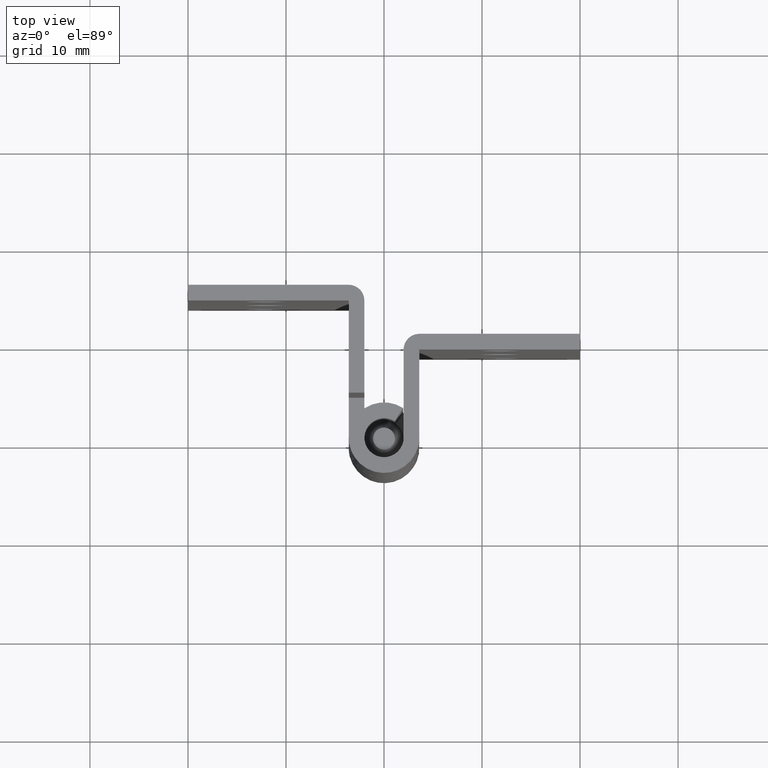
[diagram: clean part render]
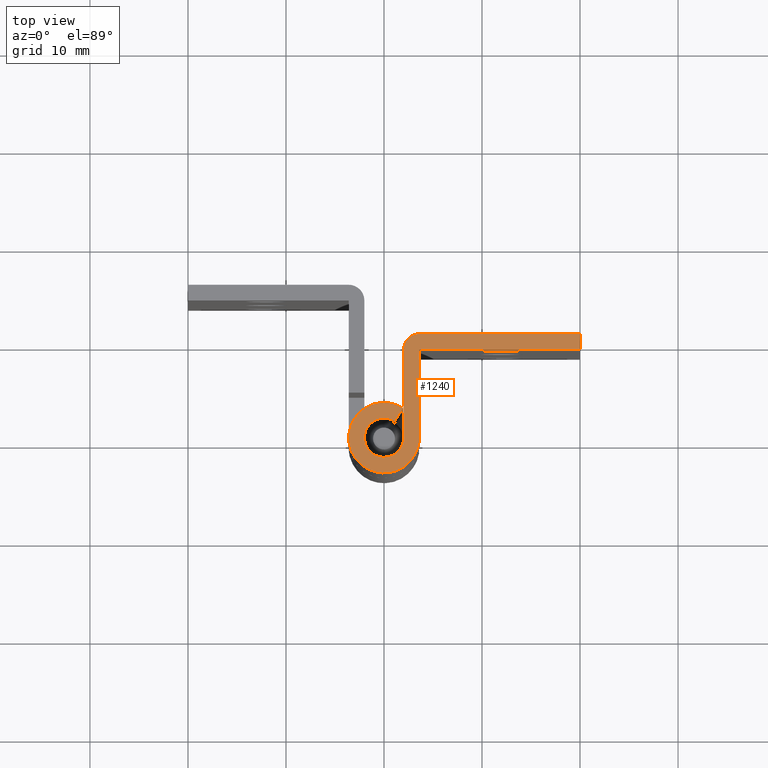
[diagram: same view with one face highlighted and labeled with its STEP entity id]
A machine part, top view. The second image highlights one B-rep face of the part: STEP entity #1240.
In plain terms, the highlighted face is a freeform B-spline surface patch.
Its self-contained STEP definition (entity closure, byte-faithful):
#1014=CARTESIAN_POINT('',(2.0,8.999998999999901,60.000008000000101));
#1015=VERTEX_POINT('',#1014);
#1021=CARTESIAN_POINT('',(3.600000000000000,10.599998999999899,60.000008000000101));
#1022=VERTEX_POINT('',#1021);
#1023=CARTESIAN_POINT('',(3.600000000000000,10.599998999999899,60.000008000000101));
#1024=CARTESIAN_POINT('',(2.000000000000000,10.599998999999901,60.000008000000101));
#1025=CARTESIAN_POINT('',(2.0,8.999998999999901,60.000008000000101));
#1033=(BOUNDED_CURVE()B_SPLINE_CURVE(2,(#1023,#1024,#1025),.UNSPECIFIED.,.F.,.U.)CURVE()GEOMETRIC_REPRESENTATION_ITEM()QUASI_UNIFORM_CURVE()RATIONAL_B_SPLINE_CURVE((1.0,0.707106781186548,1.0))REPRESENTATION_ITEM(''));
#1034=EDGE_CURVE('',#1022,#1015,#1033,.T.);
#1150=CARTESIAN_POINT('',(-4.777199319452745,11.309270186293920,60.000008000000101));
#1151=CARTESIAN_POINT('',(21.178750100033920,11.309270186293920,60.000008000000101));
#1152=CARTESIAN_POINT('',(-4.777199319452745,-4.308885285213310,60.000008000000101));
#1153=CARTESIAN_POINT('',(21.178750100033920,-4.308885285213310,60.000008000000101));
#1154=B_SPLINE_SURFACE_WITH_KNOTS('',1,1,((#1150,#1152),(#1151,#1153)),.UNSPECIFIED.,.F.,.F.,.U.,(2,2),(2,2),(0.0,25.955949419486672),(0.0,15.618155471507229),.UNSPECIFIED.);
#1155=CARTESIAN_POINT('',(20.000008000000101,10.599998999999899,60.000008000000101));
#1156=VERTEX_POINT('',#1155);
#1157=CARTESIAN_POINT('',(20.000008000000101,10.599998999999899,60.000008000000101));
#1158=CARTESIAN_POINT('',(3.600000000000000,10.599998999999899,60.000008000000101));
#1159=QUASI_UNIFORM_CURVE('',1,(#1157,#1158),.UNSPECIFIED.,.F.,.U.);
#1160=EDGE_CURVE('',#1156,#1022,#1159,.T.);
#1161=ORIENTED_EDGE('',*,*,#1160,.T.);
#1162=ORIENTED_EDGE('',*,*,#1034,.T.);
#1163=CARTESIAN_POINT('',(2.0,0.0,60.000008000000101));
#1164=VERTEX_POINT('',#1163);
#1165=CARTESIAN_POINT('',(2.0,8.999998999999901,60.000008000000101));
#1166=CARTESIAN_POINT('',(2.0,0.0,60.000008000000101));
#1167=QUASI_UNIFORM_CURVE('',1,(#1165,#1166),.UNSPECIFIED.,.F.,.U.);
#1168=EDGE_CURVE('',#1015,#1164,#1167,.T.);
#1169=ORIENTED_EDGE('',*,*,#1168,.T.);
#1170=CARTESIAN_POINT('',(1.083333333333332,1.681186750152670,60.000008000000101));
#1171=VERTEX_POINT('',#1170);
#1172=CARTESIAN_POINT('',(1.083333333333334,1.681186750152668,60.000008000000101));
#1173=CARTESIAN_POINT('',(-0.223063560064881,2.523010718282847,60.000008000000101));
#1174=CARTESIAN_POINT('',(-1.361496043202044,1.465035332114955,60.000008000000101));
#1175=CARTESIAN_POINT('',(-2.499928526339208,0.407059945947064,60.000008000000101));
#1176=CARTESIAN_POINT('',(-1.755942292142123,-0.957427107756338,60.000008000000101));
#1177=CARTESIAN_POINT('',(-1.011956057945039,-2.321914161459739,60.000008000000101));
#1178=CARTESIAN_POINT('',(0.494021971027480,-1.938025359003881,60.000008000000101));
#1179=CARTESIAN_POINT('',(2.000000000000000,-1.554136556548024,60.000008000000101));
#1180=CARTESIAN_POINT('',(2.0,0.0,60.000008000000101));
#1188=(BOUNDED_CURVE()B_SPLINE_CURVE(2,(#1172,#1173,#1174,#1175,#1176,#1177,#1178,#1179,#1180),.UNSPECIFIED.,.F.,.U.)B_SPLINE_CURVE_WITH_KNOTS((3,2,2,2,3),(0.0,0.250000000000000,0.500000000000000,0.750000000000000,1.0),.UNSPECIFIED.)CURVE()GEOMETRIC_REPRESENTATION_ITEM()RATIONAL_B_SPLINE_CURVE((1.0,0.789623639943024,1.0,0.789623639943024,1.0,0.789623639943024,1.0,0.789623639943024,1.0))REPRESENTATION_ITEM(''));
#1189=EDGE_CURVE('',#1171,#1164,#1188,.T.);
#1190=ORIENTED_EDGE('',*,*,#1189,.F.);
#1191=CARTESIAN_POINT('',(1.950000000000000,3.026136150274805,60.000008000000101));
#1192=VERTEX_POINT('',#1191);
#1193=CARTESIAN_POINT('',(1.083333333333332,1.681186750152670,60.000008000000101));
#1194=CARTESIAN_POINT('',(1.950000000000000,3.026136150274805,60.000008000000101));
#1195=QUASI_UNIFORM_CURVE('',1,(#1193,#1194),.UNSPECIFIED.,.F.,.U.);
#1196=EDGE_CURVE('',#1171,#1192,#1195,.T.);
#1197=ORIENTED_EDGE('',*,*,#1196,.T.);
#1198=CARTESIAN_POINT('',(3.600000000000000,-8.817166E-016,60.000008000000101));
#1199=VERTEX_POINT('',#1198);
#1200=CARTESIAN_POINT('',(1.950000000000000,3.026136150274802,60.000008000000101));
#1201=CARTESIAN_POINT('',(-0.401514408116786,4.541419292909125,60.000008000000101));
#1202=CARTESIAN_POINT('',(-2.450692877763680,2.637063597806920,60.000008000000101));
#1203=CARTESIAN_POINT('',(-4.499871347410572,0.732707902704715,60.000008000000101));
#1204=CARTESIAN_POINT('',(-3.160696125855822,-1.723368793961408,60.000008000000101));
#1205=CARTESIAN_POINT('',(-1.821520904301071,-4.179445490627530,60.000008000000101));
#1206=CARTESIAN_POINT('',(0.889239547849464,-3.488445646206987,60.000008000000101));
#1207=CARTESIAN_POINT('',(3.600000000000001,-2.797445801786443,60.000008000000101));
#1208=CARTESIAN_POINT('',(3.600000000000000,0.0,60.000008000000101));
#1216=(BOUNDED_CURVE()B_SPLINE_CURVE(2,(#1200,#1201,#1202,#1203,#1204,#1205,#1206,#1207,#1208),.UNSPECIFIED.,.F.,.U.)B_SPLINE_CURVE_WITH_KNOTS((3,2,2,2,3),(0.0,0.250000000000000,0.500000000000000,0.750000000000000,1.0),.UNSPECIFIED.)CURVE()GEOMETRIC_REPRESENTATION_ITEM()RATIONAL_B_SPLINE_CURVE((1.0,0.789623639943024,1.0,0.789623639943024,1.0,0.789623639943024,1.0,0.789623639943024,1.0))REPRESENTATION_ITEM(''));
#1217=EDGE_CURVE('',#1192,#1199,#1216,.T.);
#1218=ORIENTED_EDGE('',*,*,#1217,.T.);
#1219=CARTESIAN_POINT('',(3.599999999999895,8.999998999999999,60.000008000000101));
#1220=VERTEX_POINT('',#1219);
#1221=CARTESIAN_POINT('',(3.600000000000000,-8.817166E-016,60.000008000000101));
#1222=CARTESIAN_POINT('',(3.599999999999895,8.999998999999999,60.000008000000101));
#1223=QUASI_UNIFORM_CURVE('',1,(#1221,#1222),.UNSPECIFIED.,.F.,.U.);
#1224=EDGE_CURVE('',#1199,#1220,#1223,.T.);
#1225=ORIENTED_EDGE('',*,*,#1224,.T.);
#1226=CARTESIAN_POINT('',(20.000008000000101,8.999998999999999,60.000008000000101));
#1227=VERTEX_POINT('',#1226);
#1228=CARTESIAN_POINT('',(3.599999999999895,8.999998999999999,60.000008000000101));
#1229=CARTESIAN_POINT('',(20.000008000000101,8.999998999999999,60.000008000000101));
#1230=QUASI_UNIFORM_CURVE('',1,(#1228,#1229),.UNSPECIFIED.,.F.,.U.);
#1231=EDGE_CURVE('',#1220,#1227,#1230,.T.);
#1232=ORIENTED_EDGE('',*,*,#1231,.T.);
#1233=CARTESIAN_POINT('',(20.000008000000101,8.999998999999999,60.000008000000101));
#1234=CARTESIAN_POINT('',(20.000008000000101,10.599998999999899,60.000008000000101));
#1235=QUASI_UNIFORM_CURVE('',1,(#1233,#1234),.UNSPECIFIED.,.F.,.U.);
#1236=EDGE_CURVE('',#1227,#1156,#1235,.T.);
#1237=ORIENTED_EDGE('',*,*,#1236,.T.);
#1238=EDGE_LOOP('',(#1161,#1162,#1169,#1190,#1197,#1218,#1225,#1232,#1237));
#1239=FACE_OUTER_BOUND('',#1238,.T.);
#1240=ADVANCED_FACE('',(#1239),#1154,.F.);